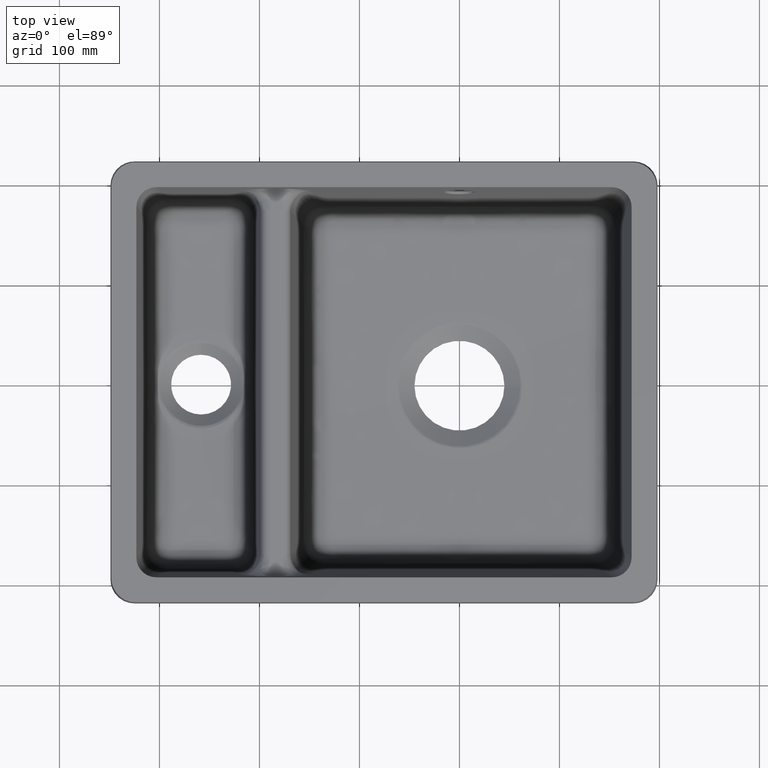
[diagram: clean part render]
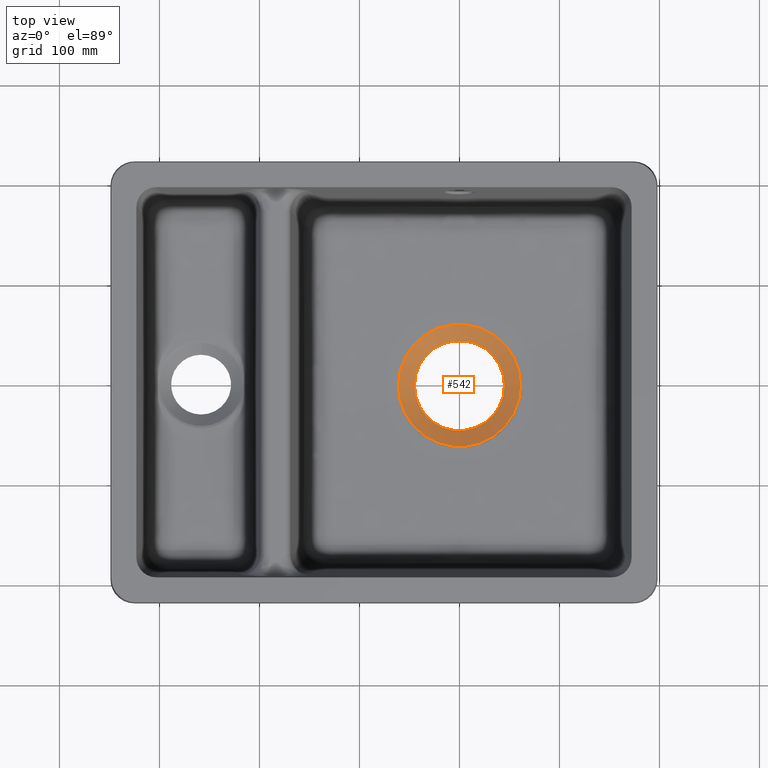
[diagram: same view with one face highlighted and labeled with its STEP entity id]
A machine part, top view. The second image highlights one B-rep face of the part: STEP entity #542.
In plain terms, the highlighted conical surface has half-angle 57.095 deg.
Its self-contained STEP definition (entity closure, byte-faithful):
#61=CONICAL_SURFACE('',#3035,0.,57.0947570770188);
#408=CIRCLE('',#3022,45.0000000000006);
#409=CIRCLE('',#3023,45.0000000000007);
#412=CIRCLE('',#3033,61.0465601031223);
#413=CIRCLE('',#3034,61.0465601031224);
#542=ADVANCED_FACE('',(#717,#718),#61,.F.);
#717=FACE_BOUND('',#811,.T.);
#718=FACE_BOUND('',#812,.T.);
#811=EDGE_LOOP('',(#1510,#1511));
#812=EDGE_LOOP('',(#1512,#1513));
#1510=ORIENTED_EDGE('',*,*,#2487,.F.);
#1511=ORIENTED_EDGE('',*,*,#2488,.F.);
#1512=ORIENTED_EDGE('',*,*,#2475,.T.);
#1513=ORIENTED_EDGE('',*,*,#2476,.T.);
#2144=VERTEX_POINT('',#6261);
#2145=VERTEX_POINT('',#6262);
#2156=VERTEX_POINT('',#6300);
#2157=VERTEX_POINT('',#6301);
#2475=EDGE_CURVE('',#2144,#2145,#408,.T.);
#2476=EDGE_CURVE('',#2145,#2144,#409,.T.);
#2487=EDGE_CURVE('',#2156,#2157,#412,.T.);
#2488=EDGE_CURVE('',#2157,#2156,#413,.T.);
#3022=AXIS2_PLACEMENT_3D('',#6260,#3465,#3466);
#3023=AXIS2_PLACEMENT_3D('',#6263,#3467,#3468);
#3033=AXIS2_PLACEMENT_3D('',#6299,#3487,#3488);
#3034=AXIS2_PLACEMENT_3D('',#6302,#3489,#3490);
#3035=AXIS2_PLACEMENT_3D('',#6303,#3491,#3492);
#3465=DIRECTION('',(4.3792130415769E-14,6.82016969441987E-28,-1.));
#3466=DIRECTION('',(-1.,0.,-4.37921304157694E-14));
#3467=DIRECTION('',(6.72301720467445E-14,-6.16790569235589E-16,-1.));
#3468=DIRECTION('',(-1.,0.,-6.72301720467446E-14));
#3487=DIRECTION('',(5.6711403355556E-14,0.,-1.));
#3488=DIRECTION('',(1.,0.,5.68328001789599E-14));
#3489=DIRECTION('',(5.6711403355556E-14,0.,-1.));
#3490=DIRECTION('',(1.,0.,5.68328001789598E-14));
#3491=DIRECTION('',(1.84405140900349E-15,-1.23244102501736E-16,1.));
#3492=DIRECTION('',(1.,-7.97561576969569E-33,-1.88574646094372E-15));
#6260=CARTESIAN_POINT('',(2.01882665423728E-13,-1.33026492437211E-13,-191.000000000005));
#6261=CARTESIAN_POINT('',(45.0000000000006,1.66533453693773E-13,-191.));
#6262=CARTESIAN_POINT('',(-45.0000000000004,-3.60822483003176E-13,-191.000000000005));
#6263=CARTESIAN_POINT('',(2.49226007203958E-13,4.79577995537932E-14,-191.000000000005));
#6299=CARTESIAN_POINT('',(-4.12497412235223E-13,-2.77555756156289E-14,-180.616931697987));
#6300=CARTESIAN_POINT('',(-61.0465601031227,-1.28034807297798E-14,-180.616931697991));
#6301=CARTESIAN_POINT('',(61.046560103122,-6.23417416988134E-14,-180.616931697984));
#6302=CARTESIAN_POINT('',(-4.12497412235225E-13,-2.77555756156289E-14,-180.616931697987));
#6303=CARTESIAN_POINT('',(1.77635683940025E-12,-2.77555756156289E-14,-220.117647058825));